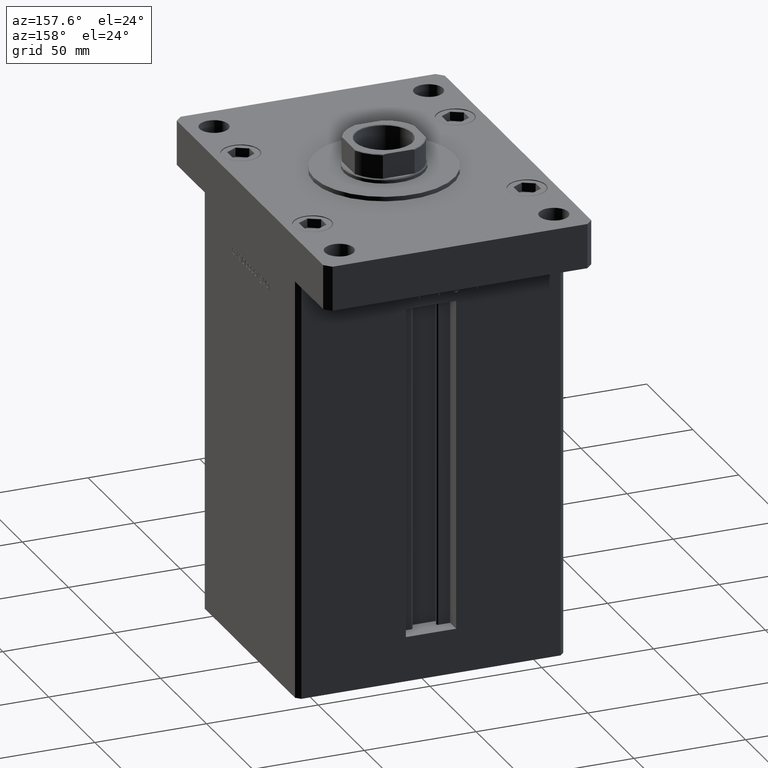
[diagram: clean part render]
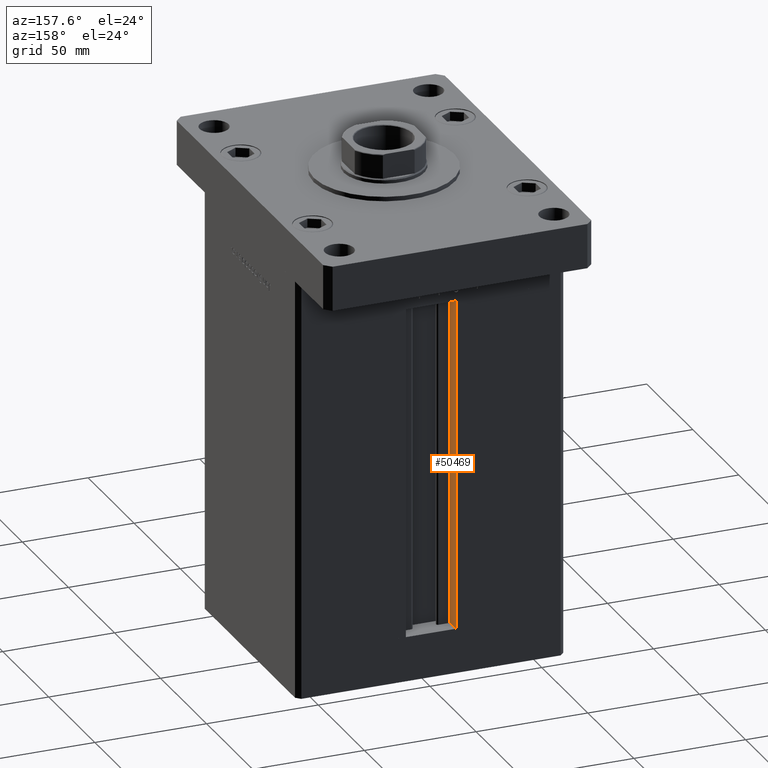
[diagram: same view with one face highlighted and labeled with its STEP entity id]
A machine part, auxiliary view. The second image highlights one B-rep face of the part: STEP entity #50469.
In plain terms, the highlighted planar face has unit normal (-1, 0, 0).
Its self-contained STEP definition (entity closure, byte-faithful):
#1649 = VECTOR ( 'NONE', #38520, 1000.000000000000000 ) ;
#2097 = LINE ( 'NONE', #39171, #39662 ) ;
#2554 = AXIS2_PLACEMENT_3D ( 'NONE', #37673, #16963, #25655 ) ;
#6704 = ORIENTED_EDGE ( 'NONE', *, *, #46518, .F. ) ;
#6892 = CARTESIAN_POINT ( 'NONE',  ( -11.25000000000000178, 44.50000000000000000, 0.000000000000000000 ) ) ;
#7967 = EDGE_CURVE ( 'NONE', #41936, #22172, #32136, .T. ) ;
#9046 = FACE_OUTER_BOUND ( 'NONE', #46534, .T. ) ;
#14975 = CARTESIAN_POINT ( 'NONE',  ( -11.25000000000000178, 0.000000000000000000, 148.5000000000000000 ) ) ;
#15703 = LINE ( 'NONE', #32328, #23303 ) ;
#16963 = DIRECTION ( 'NONE',  ( -1.000000000000000000, 0.000000000000000000, 0.000000000000000000 ) ) ;
#20311 = EDGE_CURVE ( 'NONE', #41054, #41936, #2097, .T. ) ;
#21299 = PLANE ( 'NONE',  #2554 ) ;
#22172 = VERTEX_POINT ( 'NONE', #51780 ) ;
#23303 = VECTOR ( 'NONE', #24116, 1000.000000000000000 ) ;
#24116 = DIRECTION ( 'NONE',  ( -0.000000000000000000, -1.000000000000000000, -0.000000000000000000 ) ) ;
#25395 = CARTESIAN_POINT ( 'NONE',  ( -11.25000000000000178, 44.50000000000000000, 148.5000000000000000 ) ) ;
#25655 = DIRECTION ( 'NONE',  ( 0.000000000000000000, 0.000000000000000000, 1.000000000000000000 ) ) ;
#25710 = CARTESIAN_POINT ( 'NONE',  ( -11.25000000000000178, 51.00000000000000000, 0.000000000000000000 ) ) ;
#31729 = CARTESIAN_POINT ( 'NONE',  ( -11.25000000000000178, 51.00000000000000000, 0.000000000000000000 ) ) ;
#32136 = LINE ( 'NONE', #14975, #37906 ) ;
#32328 = CARTESIAN_POINT ( 'NONE',  ( -11.25000000000000178, 44.50000000000000000, 0.000000000000000000 ) ) ;
#37673 = CARTESIAN_POINT ( 'NONE',  ( -11.25000000000000178, 44.50000000000000000, 0.000000000000000000 ) ) ;
#37906 = VECTOR ( 'NONE', #44418, 1000.000000000000000 ) ;
#38264 = LINE ( 'NONE', #25710, #1649 ) ;
#38520 = DIRECTION ( 'NONE',  ( -0.000000000000000000, -0.000000000000000000, 1.000000000000000000 ) ) ;
#39171 = CARTESIAN_POINT ( 'NONE',  ( -11.25000000000000178, 44.50000000000000000, 0.000000000000000000 ) ) ;
#39662 = VECTOR ( 'NONE', #39712, 1000.000000000000000 ) ;
#39712 = DIRECTION ( 'NONE',  ( -0.000000000000000000, -0.000000000000000000, 1.000000000000000000 ) ) ;
#41054 = VERTEX_POINT ( 'NONE', #6892 ) ;
#41936 = VERTEX_POINT ( 'NONE', #25395 ) ;
#44418 = DIRECTION ( 'NONE',  ( 0.000000000000000000, 1.000000000000000000, 0.000000000000000000 ) ) ;
#44732 = VERTEX_POINT ( 'NONE', #31729 ) ;
#45335 = ORIENTED_EDGE ( 'NONE', *, *, #20311, .F. ) ;
#46518 = EDGE_CURVE ( 'NONE', #44732, #41054, #15703, .T. ) ;
#46534 = EDGE_LOOP ( 'NONE', ( #45335, #6704, #52437, #47405 ) ) ;
#47405 = ORIENTED_EDGE ( 'NONE', *, *, #7967, .F. ) ;
#48301 = EDGE_CURVE ( 'NONE', #44732, #22172, #38264, .T. ) ;
#50469 = ADVANCED_FACE ( 'NONE', ( #9046 ), #21299, .F. ) ;
#51780 = CARTESIAN_POINT ( 'NONE',  ( -11.25000000000000178, 51.00000000000000000, 148.5000000000000000 ) ) ;
#52437 = ORIENTED_EDGE ( 'NONE', *, *, #48301, .T. ) ;